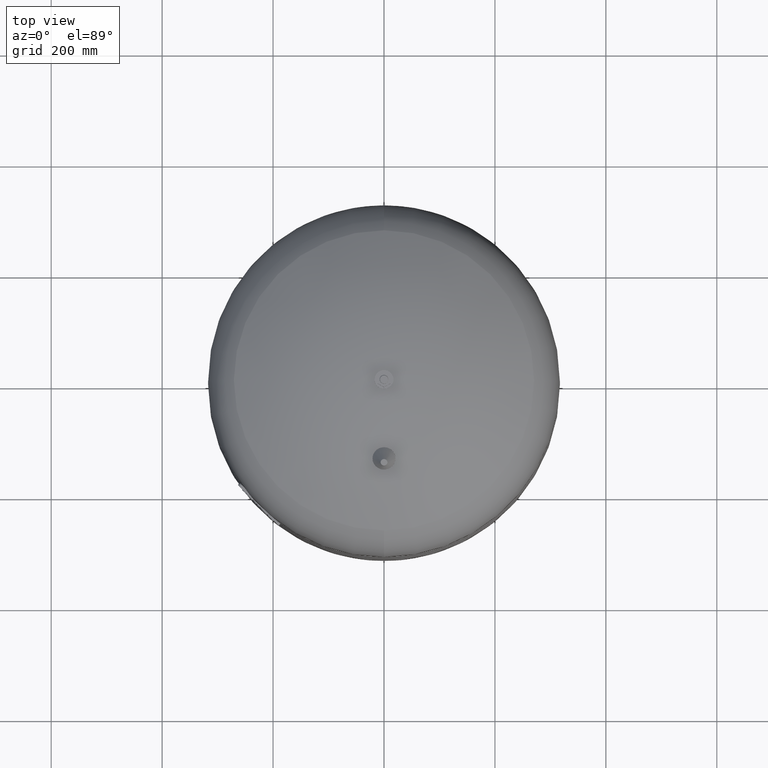
[diagram: clean part render]
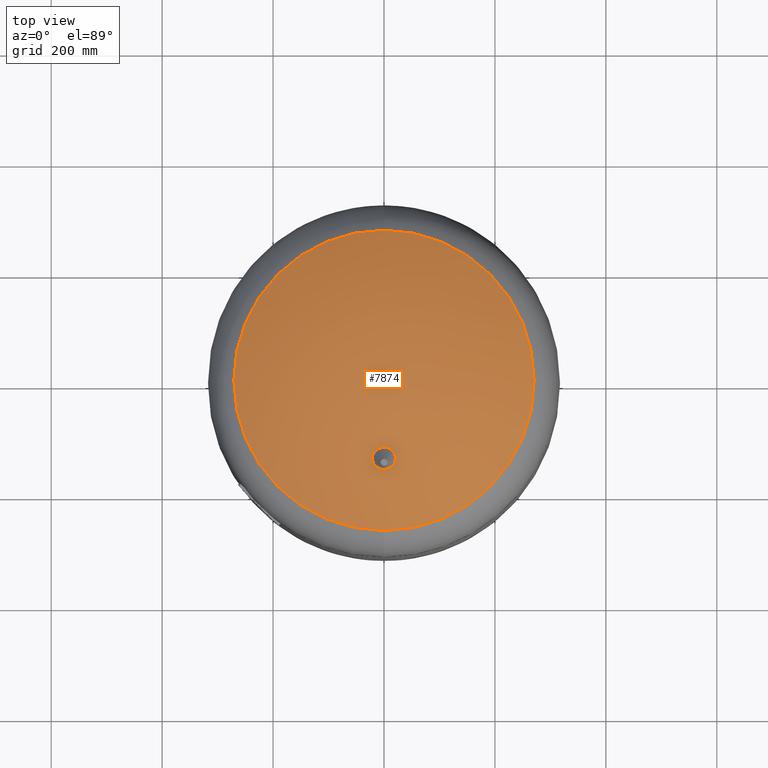
[diagram: same view with one face highlighted and labeled with its STEP entity id]
A machine part, top view. The second image highlights one B-rep face of the part: STEP entity #7874.
In plain terms, the highlighted spherical surface has radius 509 mm.
Its self-contained STEP definition (entity closure, byte-faithful):
#7813=CARTESIAN_POINT('',(8.065826E-015,270.639024390243830,860.086439681297630));
#7814=VERTEX_POINT('',#7813);
#7830=CARTESIAN_POINT('',(-2.507680E-014,-270.639024390243830,860.086439681297410));
#7831=VERTEX_POINT('',#7830);
#7839=CARTESIAN_POINT('',(-270.639024390243830,2.385415E-014,860.086439681297630));
#7840=VERTEX_POINT('',#7839);
#7841=CARTESIAN_POINT('',(-7.495146E-015,2.385415E-014,860.086439681297520));
#7842=DIRECTION('',(0.0,0.0,-1.0));
#7843=DIRECTION('',(-1.0,0.0,0.0));
#7844=AXIS2_PLACEMENT_3D('',#7841,#7842,#7843);
#7845=CIRCLE('',#7844,270.639024390243830);
#7846=EDGE_CURVE('',#7831,#7840,#7845,.T.);
#7848=CARTESIAN_POINT('',(-7.495146E-015,2.385415E-014,860.086439681297520));
#7849=DIRECTION('',(0.0,0.0,-1.0));
#7850=DIRECTION('',(-1.0,0.0,0.0));
#7851=AXIS2_PLACEMENT_3D('',#7848,#7849,#7850);
#7852=CIRCLE('',#7851,270.639024390243830);
#7853=EDGE_CURVE('',#7840,#7814,#7852,.T.);
#7858=CARTESIAN_POINT('',(-1.005746E-013,1.558363E-013,428.999999999999940));
#7859=DIRECTION('',(0.0,1.0,0.0));
#7860=DIRECTION('',(1.0,0.0,0.0));
#7861=AXIS2_PLACEMENT_3D('',#7858,#7859,#7860);
#7862=SPHERICAL_SURFACE('',#7861,509.000000000000060);
#7863=ORIENTED_EDGE('',*,*,#7853,.F.);
#7864=ORIENTED_EDGE('',*,*,#7846,.F.);
#7865=CARTESIAN_POINT('',(-7.495146E-015,2.385415E-014,860.086439681297520));
#7866=DIRECTION('',(0.0,0.0,-1.0));
#7867=DIRECTION('',(-1.0,0.0,0.0));
#7868=AXIS2_PLACEMENT_3D('',#7865,#7866,#7867);
#7869=CIRCLE('',#7868,270.639024390243830);
#7870=EDGE_CURVE('',#7814,#7831,#7869,.T.);
#7871=ORIENTED_EDGE('',*,*,#7870,.F.);
#7872=EDGE_LOOP('',(#7863,#7864,#7871));
#7873=FACE_OUTER_BOUND('',#7872,.T.);
#7874=ADVANCED_FACE('',(#7873),#7862,.T.);